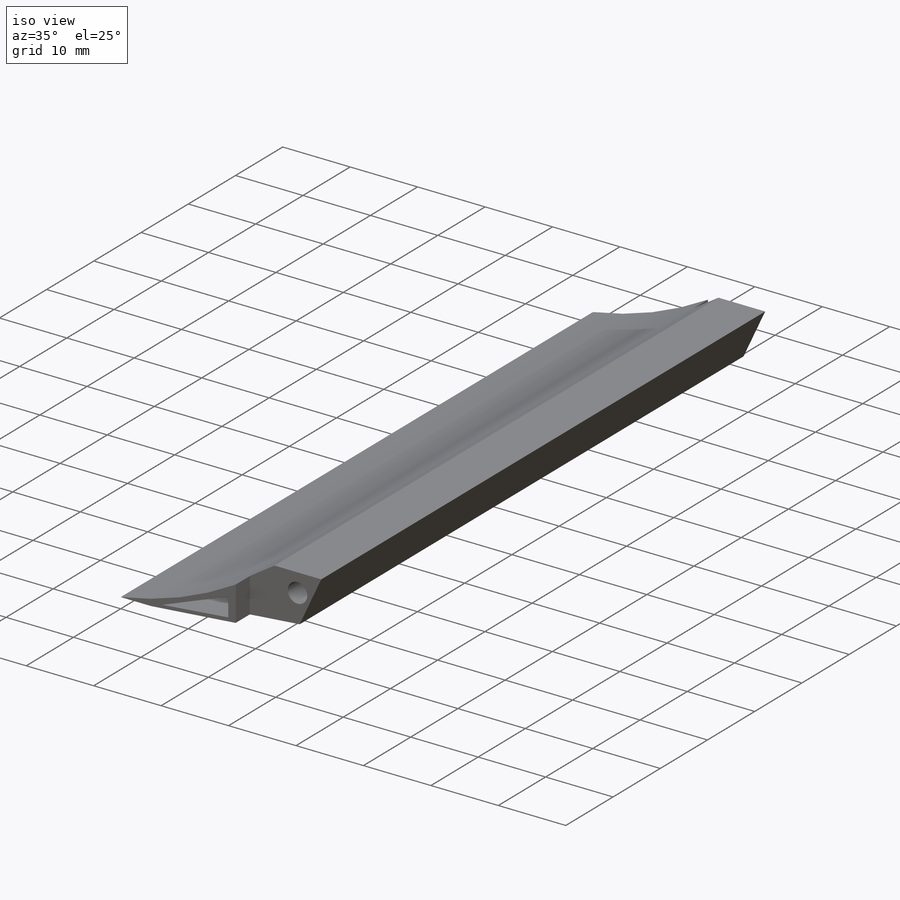
[diagram: iso view]
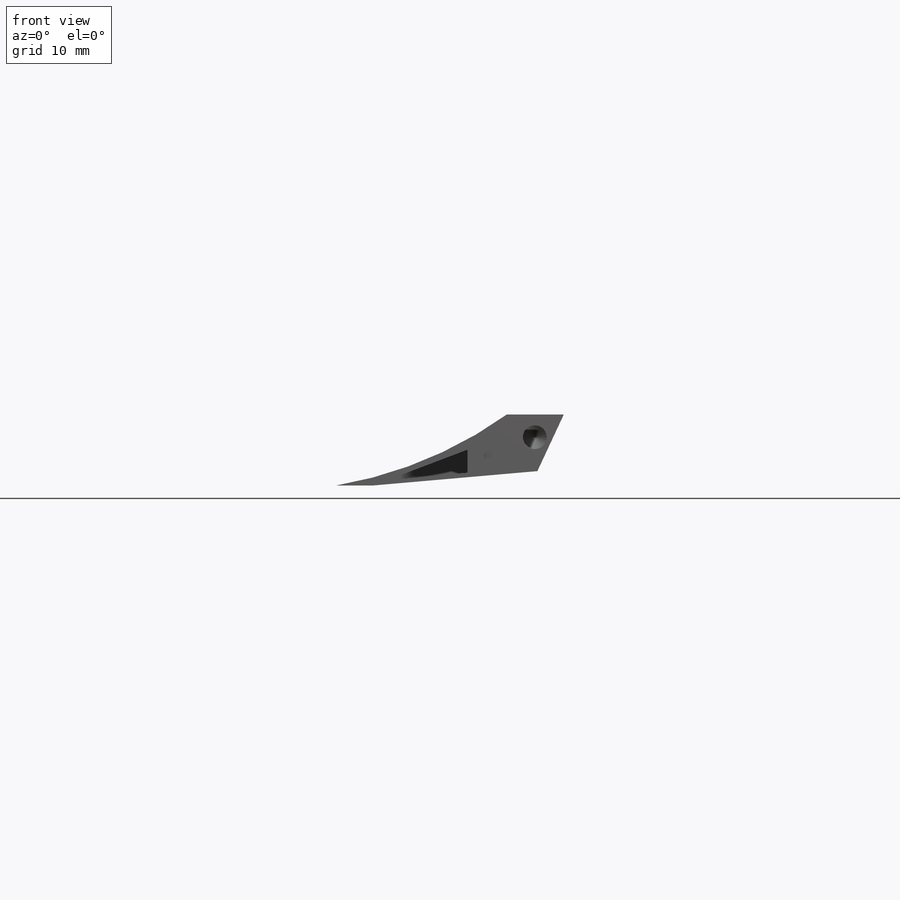
[diagram: front view]
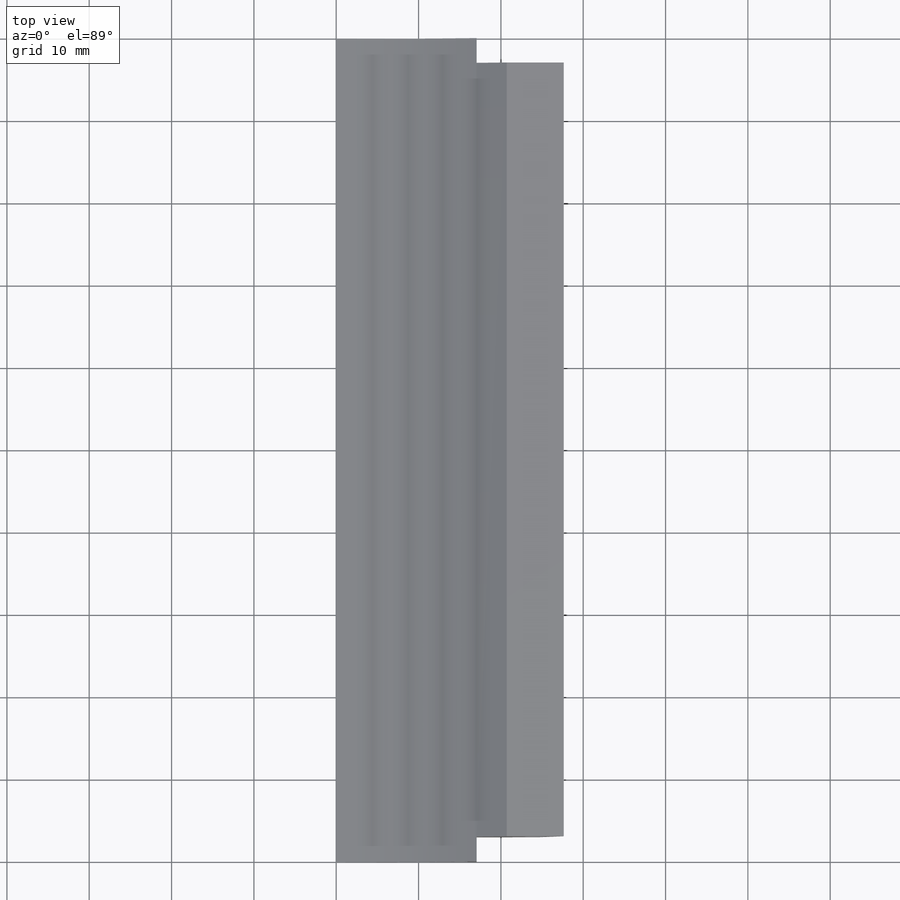
[diagram: top view]
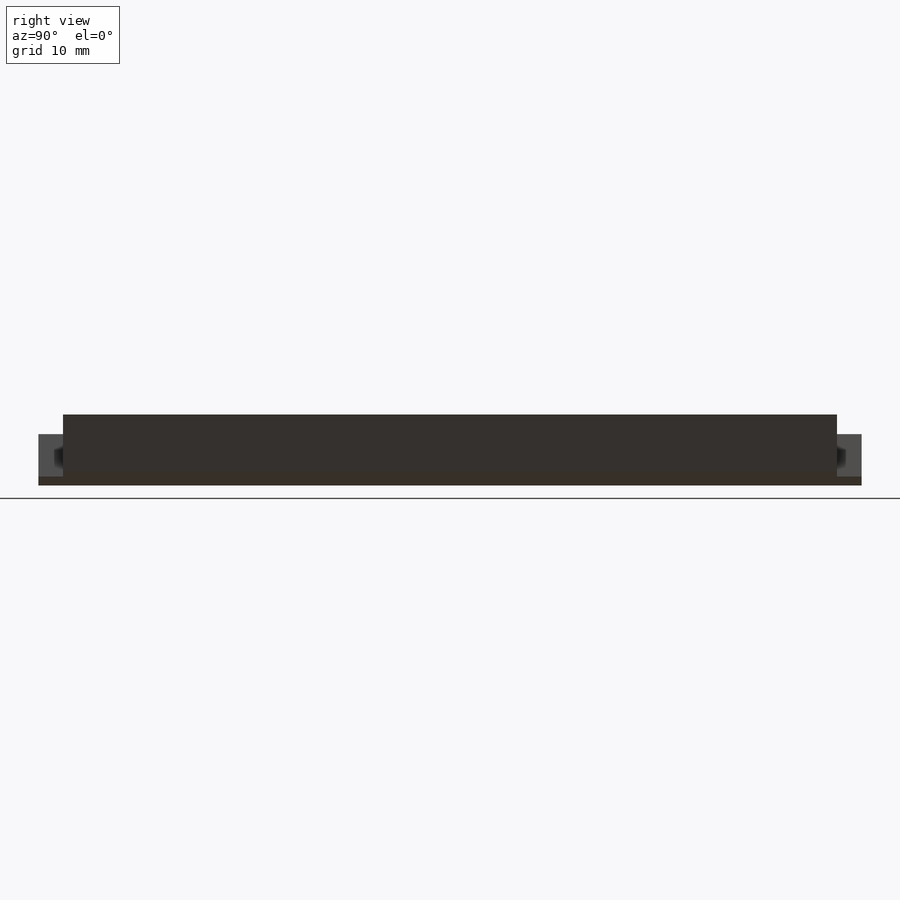
[diagram: right view]
SOLIDWORKS PART (.sldprt)
format: sldprt  version: not decoded by parser v0  size: 300,032 bytes
history: native  units: mm
features: sketch x13, cut_extrude x8, mirror x2, material x1, extrude x1, plane x1, hole x1 (+12 scaffold rows collapsed)
feature tree (39):
  scaffold x12  (default folders/planes/origin — collapsed)
  material  "Material <not specified>"
  sketch  "Sketch1"  dims[c1.D4=50.0mm c1.D1=30.0mm c1.D2=~22.017688mm c2.D2=5.0deg c2.D3=30.0mm c2.D1=35.0mm c3.D2=~22.065725mm c4.D2=5.0deg c4.D5=~27.645761mm c4.D6=~29.168889mm c4.D1=5.0mm c4.D7=~41.211541mm c5.D6=~26.909071mm c5.D5=35.0mm c6.D6=~27.818015mm c6.D3=25.0mm c7.D6=20.0mm c8.D6=120.0deg c8.D7=~19.50878mm c9.D7=175.0deg c10.D7=~19.50878mm c10.D1=~19.50878mm c11.D1=175.0deg c12.D1=20.0mm c12.D7=~24.434543mm]
  extrude  "Extrude1"  Depth=100mm
  sketch  "Sketch10"  dims[c1.D1=10.0mm c1.D2=8.0mm c1.D3=2.5mm c1.D4=~15.746124mm c2.D4=~39.425689deg c3.D4=~1.328847mm c3.D1=~14.257914mm c4.D4=12.5mm c4.D3=~11.033779mm c4.D2=2.5mm c5.D2=~10.206866deg c6.D2=2.5mm c7.D2=~169.793134deg c8.D2=12.5mm c8.D1=25.0mm c9.D1=65.0deg c10.D1=10.0mm c10.D2=~9.871991mm c11.D2=50.0deg c11.D3=~13.054073mm c11.D4=2.0mm c11.D5=~7.499025mm]
  cut_extrude  "Extrude5"  Depth=3mm
  plane  "Plane2"  Offset=50mm
  mirror  "Mirror2"
  sketch  "Sketch13"  dims[c1.D1=~3.455148mm c1.D2=~3.455148mm c1.D3=3.0mm c2.D1=3.0mm c2.D2=2.5mm c3.D1=4.0mm c3.D4=~2.376955mm]
  hole  "M2.5 Clearance Hole2"  Diameter=2.9mm Depth=16mm
  sketch  "3DSketch5"
  sketch  "Sketch16"  dims[hole-wizard template sketch: 47 standard entries collapsed; hole parameters kept: c15.Hole Depth=16.0mm c15.D3=~14.816244mm c15.Drill Angle=118.0deg]
  mirror  "Mirror3"
  sketch  "Sketch17"
  cut_extrude  "Cut-Extrude1"  Depth=100mm
  sketch  "Sketch19"  dims[D1=2.5mm]
  cut_extrude  "Cut-Extrude2"  Depth=100mm
  sketch  "Sketch20"  dims[D1=8.0mm D2=2.75mm]
  cut_extrude  "Cut-Extrude3"  Depth=98mm
  sketch  "Sketch21"
  cut_extrude  "Cut-Extrude5"  Depth=3mm
  sketch  "Sketch23"
  cut_extrude  "Cut-Extrude6"  Depth=3mm
  sketch  "Sketch24"
  cut_extrude  "Cut-Extrude7"  Depth=3mm
  sketch  "Sketch25"
  cut_extrude  "Cut-Extrude8"  Depth=3mm
  sketch  "Sketch28"  dims[D1=~0.911289mm]
decode coverage: 17 of 25 modeling features carry decoded parameters
note: ~ marks probable driven/reference dimensions
note: suppression state not decoded; provenance and decode notes live in map.json
